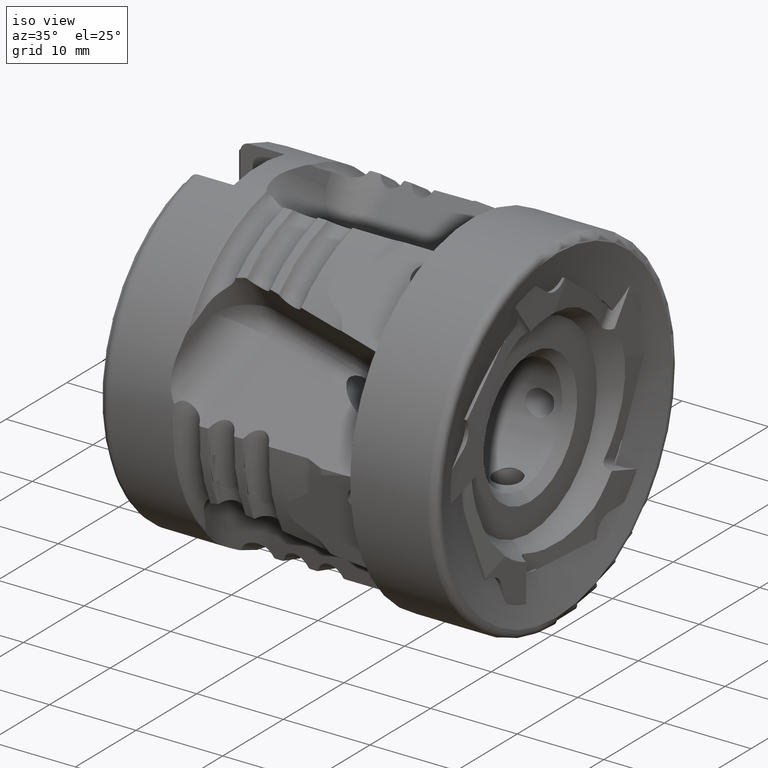
[diagram: clean part render]
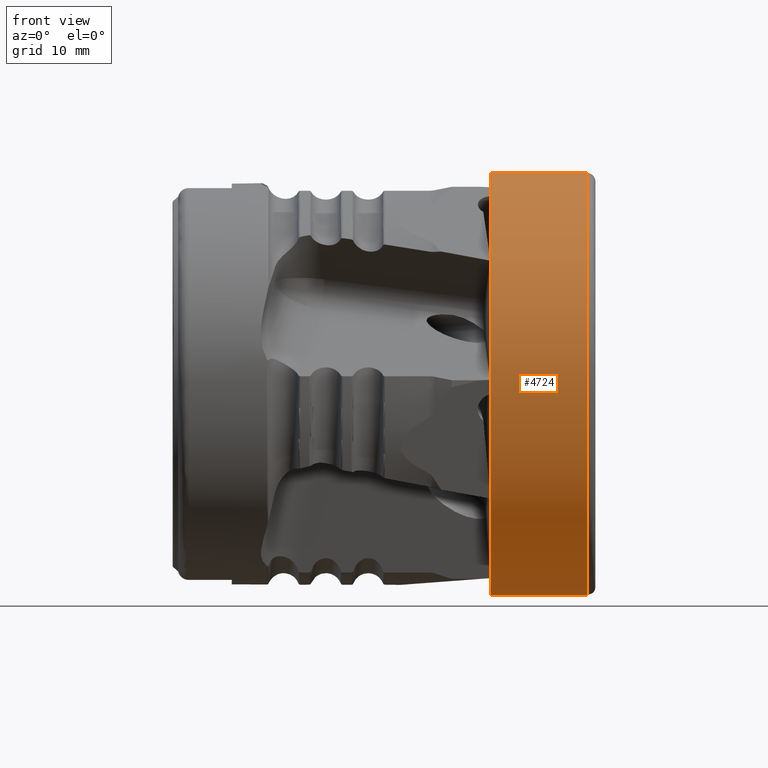
[diagram: tour spotlight — one face highlighted and labeled with its STEP entity id]
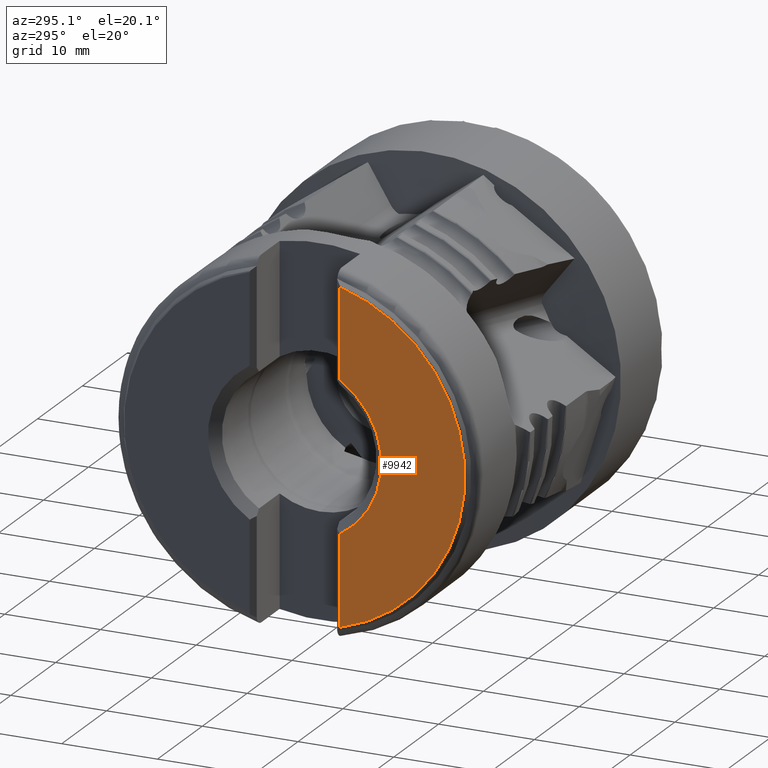
[diagram: tour spotlight — one face highlighted and labeled with its STEP entity id]
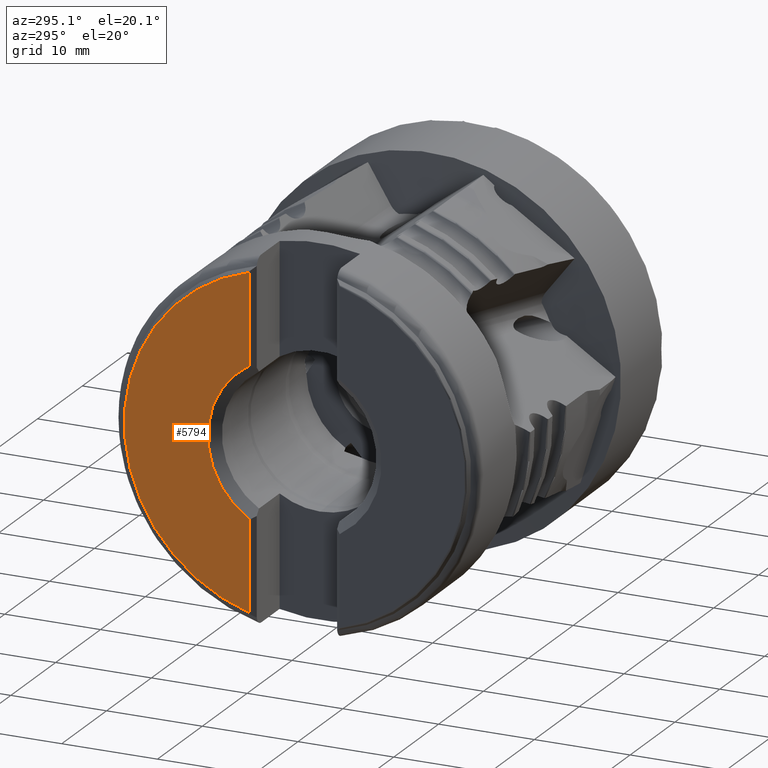
[diagram: tour spotlight — one face highlighted and labeled with its STEP entity id]
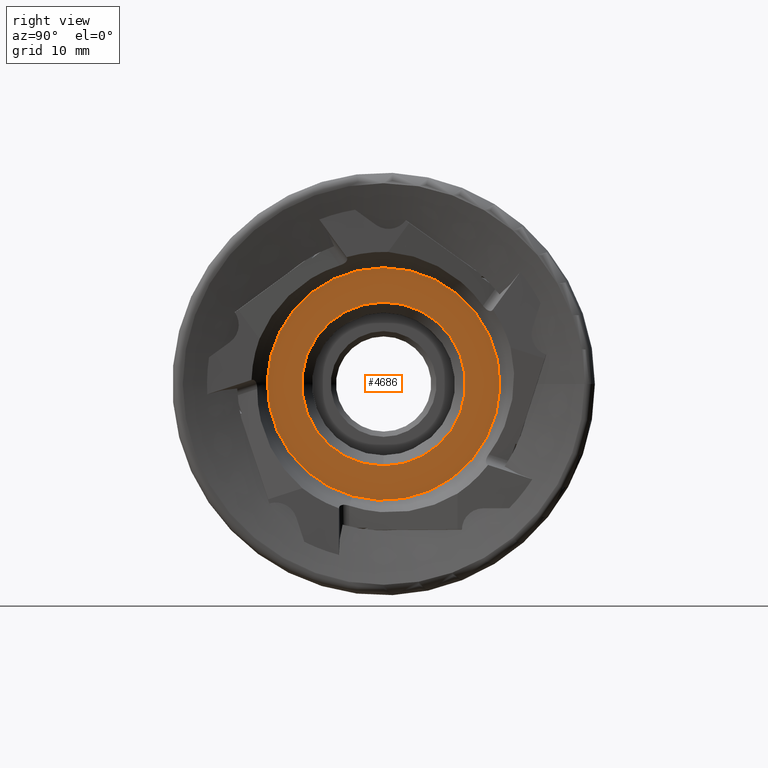
[diagram: tour spotlight — one face highlighted and labeled with its STEP entity id]
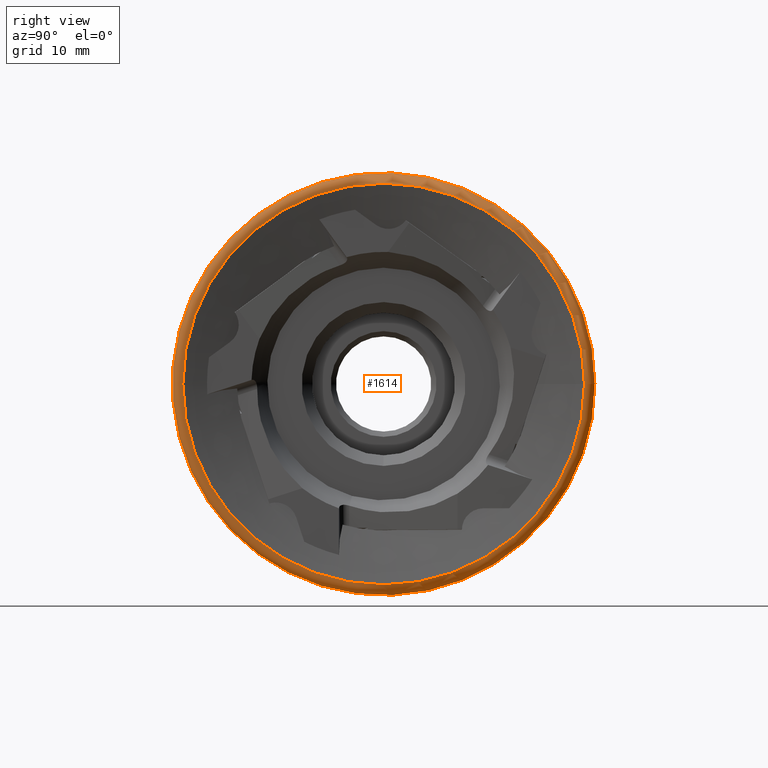
[diagram: tour spotlight — one face highlighted and labeled with its STEP entity id]
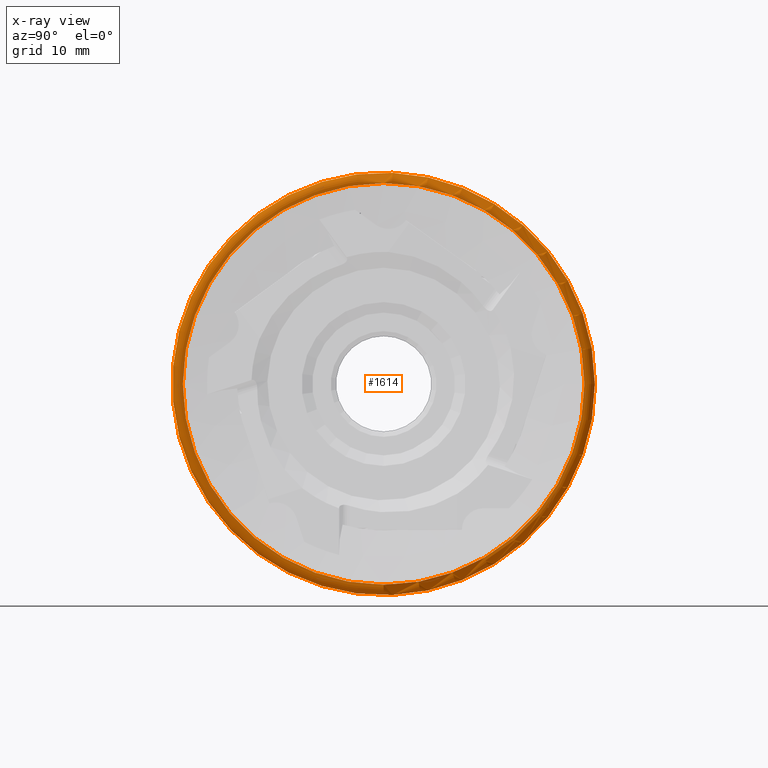
[diagram: x-ray of the same camera — body ghosted, this tour face saturated]
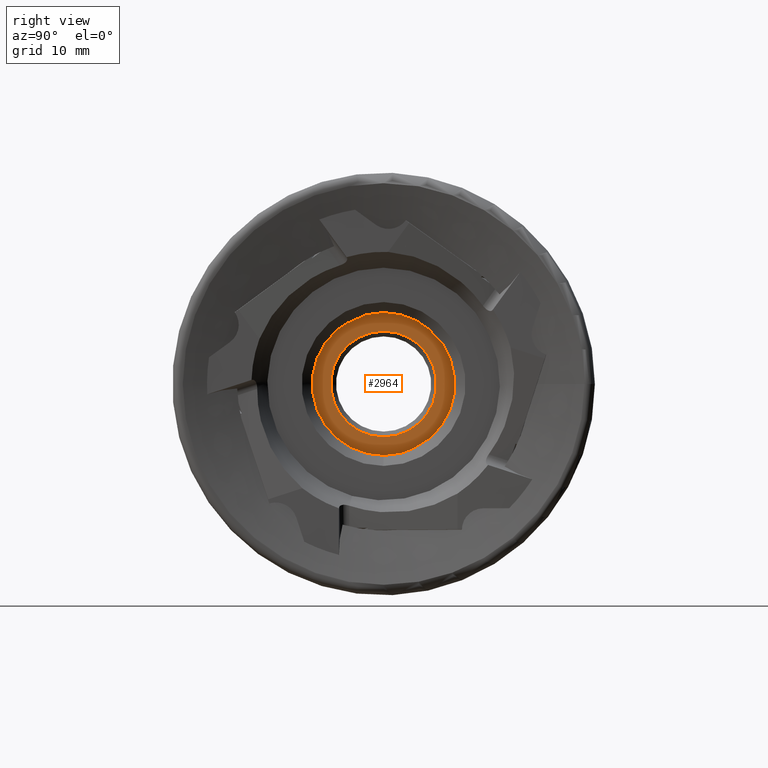
[diagram: tour spotlight — one face highlighted and labeled with its STEP entity id]
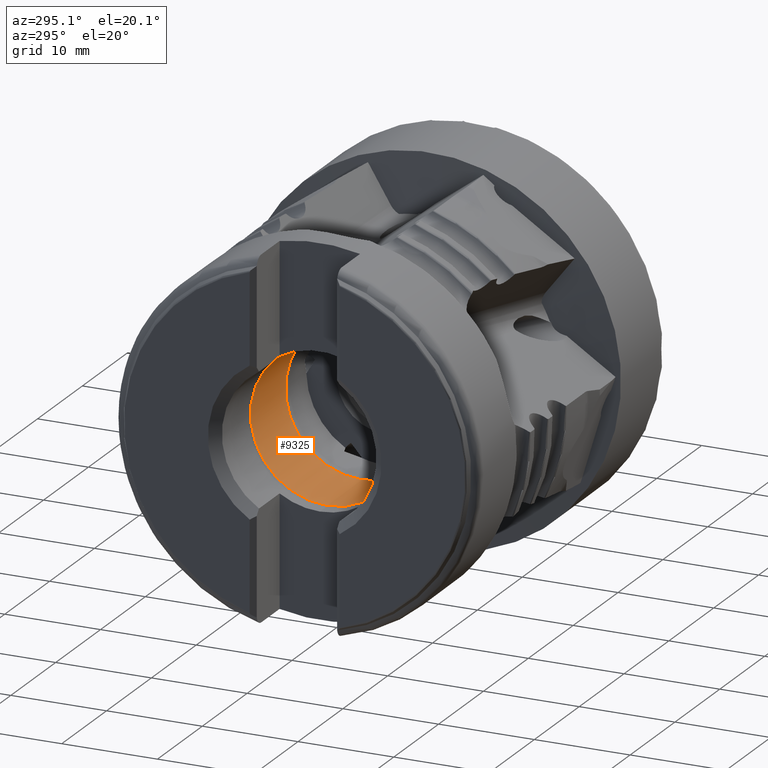
[diagram: tour spotlight — one face highlighted and labeled with its STEP entity id]
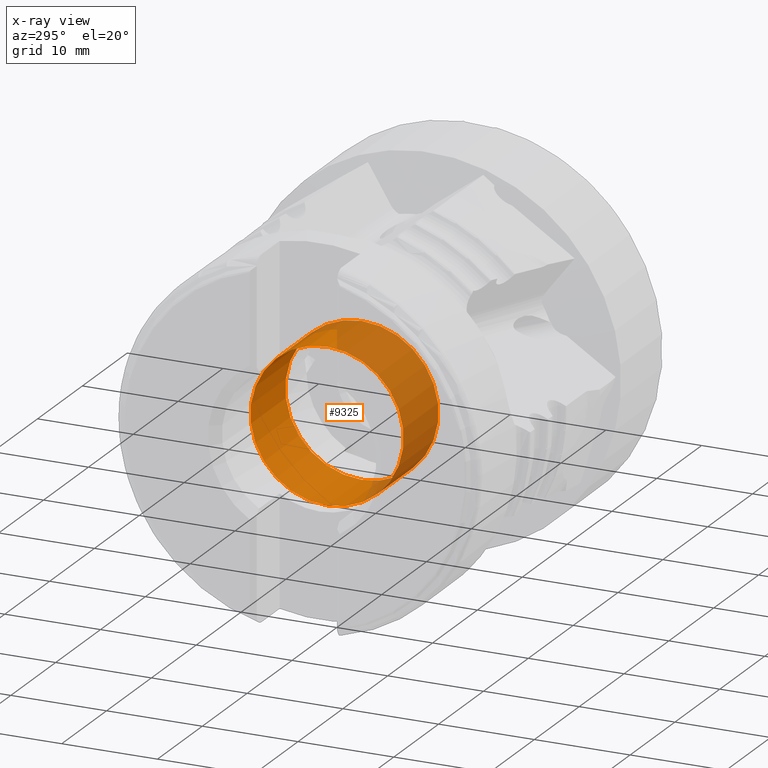
[diagram: x-ray of the same camera — body ghosted, this tour face saturated]
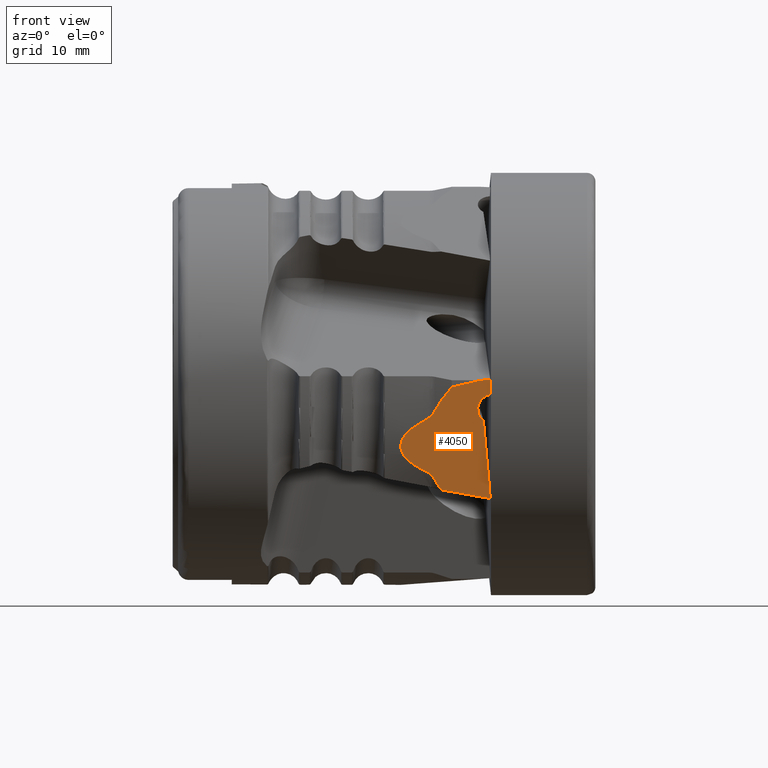
[diagram: tour spotlight — one face highlighted and labeled with its STEP entity id]
A machine part: a face-by-face anatomy tour. The part has 264 B-rep faces; the first image is the clean iso view, then the 8 largest visible faces are spotlighted one at a time (largest first), each with its STEP entity span.

Face 1 — front view, entity #4724. In plain terms, the highlighted cylindrical surface (bore or boss wall) has radius 19.9868 mm, axis along (1, 0, -0).
Definition (entity closure, byte-faithful):
#542 = EDGE_CURVE ( 'NONE', #4321, #4321, #8800, .T. ) ;
#618 = AXIS2_PLACEMENT_3D ( 'NONE', #6908, #4375, #10259 ) ;
#805 = ORIENTED_EDGE ( 'NONE', *, *, #542, .T. ) ;
#968 = AXIS2_PLACEMENT_3D ( 'NONE', #2980, #8769, #3812 ) ;
#1084 = CARTESIAN_POINT ( 'NONE',  ( -0.2073967284047837100, 19.98677821336436700, 0.0000000000000000000 ) ) ;
#1363 = EDGE_CURVE ( 'NONE', #1601, #1601, #9528, .T. ) ;
#1601 = VERTEX_POINT ( 'NONE', #1084 ) ;
#2368 = ORIENTED_EDGE ( 'NONE', *, *, #1363, .F. ) ;
#2763 = DIRECTION ( 'NONE',  ( -8.679355209019460200E-017, 1.000000000000000000, 0.0000000000000000000 ) ) ;
#2800 = DIRECTION ( 'NONE',  ( 1.000000000000000000, 1.236952380198094500E-016, -0.0000000000000000000 ) ) ;
#2980 = CARTESIAN_POINT ( 'NONE',  ( -0.2073967284047812400, -8.795422423755546100E-016, 0.0000000000000000000 ) ) ;
#3214 = CARTESIAN_POINT ( 'NONE',  ( -9.286532308095274900, -2.002588078919490900E-015, 0.0000000000000000000 ) ) ;
#3469 = AXIS2_PLACEMENT_3D ( 'NONE', #3214, #2800, #2763 ) ;
#3480 = EDGE_LOOP ( 'NONE', ( #805 ) ) ;
#3812 = DIRECTION ( 'NONE',  ( -1.234095818782454700E-016, 1.000000000000000000, 0.0000000000000000000 ) ) ;
#4321 = VERTEX_POINT ( 'NONE', #8502 ) ;
#4375 = DIRECTION ( 'NONE',  ( 1.000000000000000000, 1.236952380198094500E-016, -0.0000000000000000000 ) ) ;
#4724 = ADVANCED_FACE ( 'NONE', ( #5711, #10158 ), #6894, .T. ) ;
#5711 = FACE_OUTER_BOUND ( 'NONE', #3480, .T. ) ;
#6894 = CYLINDRICAL_SURFACE ( 'NONE', #618, 19.98677821336437100 ) ;
#6908 = CARTESIAN_POINT ( 'NONE',  ( 6.903161903081891800, 0.0000000000000000000, 0.0000000000000000000 ) ) ;
#7835 = EDGE_LOOP ( 'NONE', ( #2368 ) ) ;
#8502 = CARTESIAN_POINT ( 'NONE',  ( -9.286532308095276600, 19.98677821336436700, 0.0000000000000000000 ) ) ;
#8769 = DIRECTION ( 'NONE',  ( 1.000000000000000000, 1.236952380198094500E-016, -0.0000000000000000000 ) ) ;
#8800 = CIRCLE ( 'NONE', #3469, 19.98677821336437100 ) ;
#9528 = CIRCLE ( 'NONE', #968, 19.98677821336436700 ) ;
#10158 = FACE_OUTER_BOUND ( 'NONE', #7835, .T. ) ;
#10259 = DIRECTION ( 'NONE',  ( -1.301903281352918900E-016, 1.000000000000000000, 0.0000000000000000000 ) ) ;

Face 2 — auxiliary view, entity #9942. In plain terms, the highlighted planar face has unit normal (-1, 0, 0).
Definition (entity closure, byte-faithful):
#396 = CARTESIAN_POINT ( 'NONE',  ( -39.39999999999999900, 18.99999999999999600, 0.0000000000000000000 ) ) ;
#652 = VERTEX_POINT ( 'NONE', #4860 ) ;
#964 = AXIS2_PLACEMENT_3D ( 'NONE', #4315, #10141, #5144 ) ;
#1250 = DIRECTION ( 'NONE',  ( -1.000000000000000000, 0.0000000000000000000, 0.0000000000000000000 ) ) ;
#1431 = CARTESIAN_POINT ( 'NONE',  ( -39.39999999999999900, -4.700000000000002800, 17.15791654018633800 ) ) ;
#1583 = CARTESIAN_POINT ( 'NONE',  ( -39.39999999999999900, -4.700000000000002800, -17.28710791312416400 ) ) ;
#1599 = LINE ( 'NONE', #1583, #7955 ) ;
#1901 = EDGE_CURVE ( 'NONE', #3220, #6240, #9135, .T. ) ;
#2204 = LINE ( 'NONE', #6764, #10820 ) ;
#2554 = CARTESIAN_POINT ( 'NONE',  ( -39.39999999999999900, -4.700000000000002800, -7.763093777612116500 ) ) ;
#2639 = ORIENTED_EDGE ( 'NONE', *, *, #1901, .F. ) ;
#2787 = AXIS2_PLACEMENT_3D ( 'NONE', #396, #1250, #7054 ) ;
#3081 = CARTESIAN_POINT ( 'NONE',  ( -39.39999999999999900, 0.0000000000000000000, 0.0000000000000000000 ) ) ;
#3220 = VERTEX_POINT ( 'NONE', #1431 ) ;
#3908 = DIRECTION ( 'NONE',  ( 0.0000000000000000000, 0.0000000000000000000, 1.000000000000000000 ) ) ;
#4005 = AXIS2_PLACEMENT_3D ( 'NONE', #3081, #8865, #3908 ) ;
#4315 = CARTESIAN_POINT ( 'NONE',  ( -39.39999999999999900, -4.374278717023119000E-015, 0.0000000000000000000 ) ) ;
#4660 = FACE_OUTER_BOUND ( 'NONE', #9224, .T. ) ;
#4860 = CARTESIAN_POINT ( 'NONE',  ( -39.39999999999999900, -4.700000000000002800, 7.763093777612116500 ) ) ;
#5144 = DIRECTION ( 'NONE',  ( 0.0000000000000000000, 1.000000000000000000, 0.0000000000000000000 ) ) ;
#6177 = PLANE ( 'NONE',  #2787 ) ;
#6240 = VERTEX_POINT ( 'NONE', #7792 ) ;
#6592 = EDGE_CURVE ( 'NONE', #3220, #652, #2204, .T. ) ;
#6764 = CARTESIAN_POINT ( 'NONE',  ( -39.39999999999999900, -4.700000000000002800, 8.044602227580922400 ) ) ;
#7054 = DIRECTION ( 'NONE',  ( 0.0000000000000000000, 0.0000000000000000000, 1.000000000000000000 ) ) ;
#7622 = DIRECTION ( 'NONE',  ( 0.0000000000000000000, 0.0000000000000000000, -1.000000000000000000 ) ) ;
#7792 = CARTESIAN_POINT ( 'NONE',  ( -39.39999999999999900, -4.700000000000002000, -17.15791654018633800 ) ) ;
#7955 = VECTOR ( 'NONE', #10728, 1000.000000000000000 ) ;
#8267 = EDGE_CURVE ( 'NONE', #652, #10721, #9249, .T. ) ;
#8410 = EDGE_CURVE ( 'NONE', #10721, #6240, #1599, .T. ) ;
#8865 = DIRECTION ( 'NONE',  ( 1.000000000000000000, -0.0000000000000000000, -0.0000000000000000000 ) ) ;
#9135 = CIRCLE ( 'NONE', #964, 17.78999999999999900 ) ;
#9224 = EDGE_LOOP ( 'NONE', ( #10675, #9479, #2639, #9950 ) ) ;
#9249 = CIRCLE ( 'NONE', #4005, 9.074999999999999300 ) ;
#9479 = ORIENTED_EDGE ( 'NONE', *, *, #8410, .T. ) ;
#9942 = ADVANCED_FACE ( 'NONE', ( #4660 ), #6177, .T. ) ;
#9950 = ORIENTED_EDGE ( 'NONE', *, *, #6592, .T. ) ;
#10141 = DIRECTION ( 'NONE',  ( 1.000000000000000000, 1.110223024625157000E-016, -0.0000000000000000000 ) ) ;
#10675 = ORIENTED_EDGE ( 'NONE', *, *, #8267, .T. ) ;
#10721 = VERTEX_POINT ( 'NONE', #2554 ) ;
#10728 = DIRECTION ( 'NONE',  ( 0.0000000000000000000, 0.0000000000000000000, -1.000000000000000000 ) ) ;
#10820 = VECTOR ( 'NONE', #7622, 1000.000000000000000 ) ;

Face 3 — auxiliary view, entity #5794. In plain terms, the highlighted planar face has unit normal (-1, 0, 0).
Definition (entity closure, byte-faithful):
#123 = EDGE_CURVE ( 'NONE', #8005, #8470, #5832, .T. ) ;
#543 = CIRCLE ( 'NONE', #10367, 9.074999999999999300 ) ;
#900 = VECTOR ( 'NONE', #10221, 1000.000000000000000 ) ;
#991 = CARTESIAN_POINT ( 'NONE',  ( -39.39999999999999900, 4.699999999999995700, -7.763093777612120900 ) ) ;
#1206 = EDGE_CURVE ( 'NONE', #8206, #8470, #9041, .T. ) ;
#1446 = ORIENTED_EDGE ( 'NONE', *, *, #7724, .T. ) ;
#1579 = FACE_OUTER_BOUND ( 'NONE', #5257, .T. ) ;
#1689 = PLANE ( 'NONE',  #10610 ) ;
#1906 = VERTEX_POINT ( 'NONE', #991 ) ;
#2070 = ORIENTED_EDGE ( 'NONE', *, *, #3592, .T. ) ;
#2516 = DIRECTION ( 'NONE',  ( 0.0000000000000000000, 0.0000000000000000000, 1.000000000000000000 ) ) ;
#3116 = CARTESIAN_POINT ( 'NONE',  ( -39.39999999999999900, 0.0000000000000000000, 0.0000000000000000000 ) ) ;
#3229 = DIRECTION ( 'NONE',  ( 0.0000000000000000000, 1.000000000000000000, 0.0000000000000000000 ) ) ;
#3337 = CARTESIAN_POINT ( 'NONE',  ( -39.39999999999999900, 18.99999999999999600, 0.0000000000000000000 ) ) ;
#3478 = ORIENTED_EDGE ( 'NONE', *, *, #123, .T. ) ;
#3592 = EDGE_CURVE ( 'NONE', #1906, #8005, #543, .T. ) ;
#3938 = DIRECTION ( 'NONE',  ( 0.0000000000000000000, 8.881784197001252300E-016, 1.000000000000000000 ) ) ;
#4825 = DIRECTION ( 'NONE',  ( 1.000000000000000000, 1.110223024625157000E-016, -0.0000000000000000000 ) ) ;
#5031 = AXIS2_PLACEMENT_3D ( 'NONE', #10692, #4825, #3229 ) ;
#5225 = CARTESIAN_POINT ( 'NONE',  ( -39.39999999999999900, 4.699999999999995700, 17.28710791312416400 ) ) ;
#5257 = EDGE_LOOP ( 'NONE', ( #2070, #3478, #9382, #1446 ) ) ;
#5794 = ADVANCED_FACE ( 'NONE', ( #1579 ), #1689, .T. ) ;
#5832 = LINE ( 'NONE', #5225, #900 ) ;
#7495 = DIRECTION ( 'NONE',  ( -1.000000000000000000, 0.0000000000000000000, 0.0000000000000000000 ) ) ;
#7724 = EDGE_CURVE ( 'NONE', #8206, #1906, #10790, .T. ) ;
#8005 = VERTEX_POINT ( 'NONE', #9820 ) ;
#8206 = VERTEX_POINT ( 'NONE', #9556 ) ;
#8470 = VERTEX_POINT ( 'NONE', #9966 ) ;
#8542 = VECTOR ( 'NONE', #9531, 1000.000000000000000 ) ;
#8694 = CARTESIAN_POINT ( 'NONE',  ( -39.39999999999999900, 4.699999999999995700, -8.044602227580927700 ) ) ;
#8899 = DIRECTION ( 'NONE',  ( 1.000000000000000000, -0.0000000000000000000, -0.0000000000000000000 ) ) ;
#9041 = CIRCLE ( 'NONE', #5031, 17.78999999999999900 ) ;
#9382 = ORIENTED_EDGE ( 'NONE', *, *, #1206, .F. ) ;
#9531 = DIRECTION ( 'NONE',  ( 0.0000000000000000000, -0.0000000000000000000, 1.000000000000000000 ) ) ;
#9556 = CARTESIAN_POINT ( 'NONE',  ( -39.39999999999999900, 4.699999999999995700, -17.15791654018633800 ) ) ;
#9820 = CARTESIAN_POINT ( 'NONE',  ( -39.39999999999999900, 4.699999999999995700, 7.763093777612120900 ) ) ;
#9966 = CARTESIAN_POINT ( 'NONE',  ( -39.39999999999999900, 4.699999999999996600, 17.15791654018633800 ) ) ;
#10221 = DIRECTION ( 'NONE',  ( 0.0000000000000000000, -0.0000000000000000000, 1.000000000000000000 ) ) ;
#10367 = AXIS2_PLACEMENT_3D ( 'NONE', #3116, #8899, #3938 ) ;
#10610 = AXIS2_PLACEMENT_3D ( 'NONE', #3337, #7495, #2516 ) ;
#10692 = CARTESIAN_POINT ( 'NONE',  ( -39.39999999999999900, -4.374278717023119000E-015, 0.0000000000000000000 ) ) ;
#10790 = LINE ( 'NONE', #8694, #8542 ) ;

Face 4 — right view, entity #4686. In plain terms, the highlighted planar face has unit normal (1, 0, 0).
Definition (entity closure, byte-faithful):
#213 = CARTESIAN_POINT ( 'NONE',  ( -2.499999999999999100, 11.00000000000000000, 0.0000000000000000000 ) ) ;
#787 = EDGE_LOOP ( 'NONE', ( #3868 ) ) ;
#994 = CARTESIAN_POINT ( 'NONE',  ( -2.499999999999999600, 0.0000000000000000000, 0.0000000000000000000 ) ) ;
#1071 = DIRECTION ( 'NONE',  ( 1.000000000000000000, 0.0000000000000000000, 0.0000000000000000000 ) ) ;
#1087 = VERTEX_POINT ( 'NONE', #6924 ) ;
#1347 = VERTEX_POINT ( 'NONE', #10241 ) ;
#1571 = FACE_OUTER_BOUND ( 'NONE', #787, .T. ) ;
#1828 = DIRECTION ( 'NONE',  ( 0.0000000000000000000, 0.0000000000000000000, 1.000000000000000000 ) ) ;
#2095 = AXIS2_PLACEMENT_3D ( 'NONE', #4583, #10453, #5436 ) ;
#2954 = EDGE_LOOP ( 'NONE', ( #3485 ) ) ;
#3485 = ORIENTED_EDGE ( 'NONE', *, *, #7311, .T. ) ;
#3868 = ORIENTED_EDGE ( 'NONE', *, *, #5477, .F. ) ;
#4387 = CIRCLE ( 'NONE', #8540, 11.00000000000000000 ) ;
#4583 = CARTESIAN_POINT ( 'NONE',  ( -2.499999999999999100, 0.0000000000000000000, 0.0000000000000000000 ) ) ;
#4686 = ADVANCED_FACE ( 'NONE', ( #8180, #1571 ), #8493, .T. ) ;
#5436 = DIRECTION ( 'NONE',  ( 0.0000000000000000000, 0.0000000000000000000, -1.000000000000000000 ) ) ;
#5477 = EDGE_CURVE ( 'NONE', #1347, #1347, #4387, .T. ) ;
#6531 = AXIS2_PLACEMENT_3D ( 'NONE', #213, #1071, #6866 ) ;
#6617 = CIRCLE ( 'NONE', #2095, 7.750000000000007100 ) ;
#6801 = DIRECTION ( 'NONE',  ( -1.000000000000000000, -0.0000000000000000000, -0.0000000000000000000 ) ) ;
#6866 = DIRECTION ( 'NONE',  ( 0.0000000000000000000, 0.0000000000000000000, -1.000000000000000000 ) ) ;
#6924 = CARTESIAN_POINT ( 'NONE',  ( -2.499999999999999100, 0.0000000000000000000, -7.750000000000007100 ) ) ;
#7311 = EDGE_CURVE ( 'NONE', #1087, #1087, #6617, .T. ) ;
#8180 = FACE_BOUND ( 'NONE', #2954, .T. ) ;
#8493 = PLANE ( 'NONE',  #6531 ) ;
#8540 = AXIS2_PLACEMENT_3D ( 'NONE', #994, #6801, #1828 ) ;
#10241 = CARTESIAN_POINT ( 'NONE',  ( -2.499999999999999600, 0.0000000000000000000, 11.00000000000000000 ) ) ;
#10453 = DIRECTION ( 'NONE',  ( -1.000000000000000000, -0.0000000000000000000, -0.0000000000000000000 ) ) ;

Face 5 — right view, entity #1614. An x-ray twin of the same camera follows (body ghosted, this face saturated) — the face is partly hidden behind the body. In plain terms, the highlighted toroidal blend (fillet) surface has major radius 19.1868 mm and minor (blend) radius 0.8 mm.
Definition (entity closure, byte-faithful):
#23 = AXIS2_PLACEMENT_3D ( 'NONE', #9469, #7908, #2949 ) ;
#298 = FACE_OUTER_BOUND ( 'NONE', #1435, .T. ) ;
#967 = EDGE_CURVE ( 'NONE', #3804, #3804, #3996, .T. ) ;
#968 = AXIS2_PLACEMENT_3D ( 'NONE', #2980, #8769, #3812 ) ;
#1084 = CARTESIAN_POINT ( 'NONE',  ( -0.2073967284047837100, 19.98677821336436700, 0.0000000000000000000 ) ) ;
#1363 = EDGE_CURVE ( 'NONE', #1601, #1601, #9528, .T. ) ;
#1435 = EDGE_LOOP ( 'NONE', ( #1549 ) ) ;
#1549 = ORIENTED_EDGE ( 'NONE', *, *, #967, .F. ) ;
#1601 = VERTEX_POINT ( 'NONE', #1084 ) ;
#1614 = ADVANCED_FACE ( 'NONE', ( #2510, #298 ), #1886, .T. ) ;
#1886 = TOROIDAL_SURFACE ( 'NONE', #23, 19.18677821336437000, 0.7999999999999997100 ) ;
#2510 = FACE_OUTER_BOUND ( 'NONE', #6481, .T. ) ;
#2747 = CARTESIAN_POINT ( 'NONE',  ( 0.5689862865202015600, 18.99382896061642600, 0.0000000000000000000 ) ) ;
#2949 = DIRECTION ( 'NONE',  ( -1.236952380198094500E-016, 1.000000000000000000, 0.0000000000000000000 ) ) ;
#2980 = CARTESIAN_POINT ( 'NONE',  ( -0.2073967284047812400, -8.795422423755546100E-016, 0.0000000000000000000 ) ) ;
#3053 = AXIS2_PLACEMENT_3D ( 'NONE', #3839, #4638, #9638 ) ;
#3804 = VERTEX_POINT ( 'NONE', #2747 ) ;
#3812 = DIRECTION ( 'NONE',  ( -1.234095818782454700E-016, 1.000000000000000000, 0.0000000000000000000 ) ) ;
#3839 = CARTESIAN_POINT ( 'NONE',  ( 0.5689862865202038900, -7.835073605498713200E-016, 0.0000000000000000000 ) ) ;
#3996 = CIRCLE ( 'NONE', #3053, 18.99382896061642600 ) ;
#4638 = DIRECTION ( 'NONE',  ( 1.000000000000000000, 1.236952380198094500E-016, -0.0000000000000000000 ) ) ;
#4899 = ORIENTED_EDGE ( 'NONE', *, *, #1363, .T. ) ;
#6481 = EDGE_LOOP ( 'NONE', ( #4899 ) ) ;
#7908 = DIRECTION ( 'NONE',  ( 1.000000000000000000, 1.236952380198094500E-016, -0.0000000000000000000 ) ) ;
#8769 = DIRECTION ( 'NONE',  ( 1.000000000000000000, 1.236952380198094500E-016, -0.0000000000000000000 ) ) ;
#9469 = CARTESIAN_POINT ( 'NONE',  ( -0.2073967284047815400, 0.0000000000000000000, 0.0000000000000000000 ) ) ;
#9528 = CIRCLE ( 'NONE', #968, 19.98677821336436700 ) ;
#9638 = DIRECTION ( 'NONE',  ( -1.255799862373141400E-016, 1.000000000000000000, 0.0000000000000000000 ) ) ;

Face 6 — right view, entity #2964. In plain terms, the highlighted planar face has unit normal (-1, 0, 0).
Definition (entity closure, byte-faithful):
#1242 = EDGE_LOOP ( 'NONE', ( #4165 ) ) ;
#1502 = DIRECTION ( 'NONE',  ( -1.000000000000000000, 0.0000000000000000000, 0.0000000000000000000 ) ) ;
#2558 = AXIS2_PLACEMENT_3D ( 'NONE', #9839, #4842, #10715 ) ;
#2790 = CARTESIAN_POINT ( 'NONE',  ( -11.50000000000000000, 0.0000000000000000000, 5.000000000000011500 ) ) ;
#2964 = ADVANCED_FACE ( 'NONE', ( #10063, #5363 ), #10202, .F. ) ;
#3538 = CIRCLE ( 'NONE', #6323, 5.000000000000011500 ) ;
#4165 = ORIENTED_EDGE ( 'NONE', *, *, #10174, .T. ) ;
#4382 = DIRECTION ( 'NONE',  ( -1.000000000000000000, 0.0000000000000000000, 0.0000000000000000000 ) ) ;
#4508 = ORIENTED_EDGE ( 'NONE', *, *, #9732, .T. ) ;
#4842 = DIRECTION ( 'NONE',  ( 1.000000000000000000, -0.0000000000000000000, -0.0000000000000000000 ) ) ;
#5226 = VERTEX_POINT ( 'NONE', #2790 ) ;
#5363 = FACE_OUTER_BOUND ( 'NONE', #1242, .T. ) ;
#5598 = EDGE_LOOP ( 'NONE', ( #4508 ) ) ;
#6323 = AXIS2_PLACEMENT_3D ( 'NONE', #6482, #1502, #7318 ) ;
#6482 = CARTESIAN_POINT ( 'NONE',  ( -11.50000000000000000, 0.0000000000000000000, 0.0000000000000000000 ) ) ;
#7282 = CIRCLE ( 'NONE', #2558, 6.749999999999998200 ) ;
#7318 = DIRECTION ( 'NONE',  ( 0.0000000000000000000, 0.0000000000000000000, 1.000000000000000000 ) ) ;
#8118 = AXIS2_PLACEMENT_3D ( 'NONE', #8529, #4382, #10233 ) ;
#8529 = CARTESIAN_POINT ( 'NONE',  ( -11.50000000000000000, 6.749999999999998200, 0.0000000000000000000 ) ) ;
#9388 = VERTEX_POINT ( 'NONE', #9413 ) ;
#9413 = CARTESIAN_POINT ( 'NONE',  ( -11.50000000000000000, 0.0000000000000000000, -6.749999999999998200 ) ) ;
#9732 = EDGE_CURVE ( 'NONE', #5226, #5226, #3538, .T. ) ;
#9839 = CARTESIAN_POINT ( 'NONE',  ( -11.50000000000000000, 0.0000000000000000000, 0.0000000000000000000 ) ) ;
#10063 = FACE_BOUND ( 'NONE', #5598, .T. ) ;
#10174 = EDGE_CURVE ( 'NONE', #9388, #9388, #7282, .T. ) ;
#10202 = PLANE ( 'NONE',  #8118 ) ;
#10233 = DIRECTION ( 'NONE',  ( 0.0000000000000000000, 0.0000000000000000000, 1.000000000000000000 ) ) ;
#10715 = DIRECTION ( 'NONE',  ( 0.0000000000000000000, 0.0000000000000000000, -1.000000000000000000 ) ) ;

Face 7 — auxiliary view, entity #9325. An x-ray twin of the same camera follows (body ghosted, this face saturated) — the face is partly hidden behind the body. In plain terms, the highlighted cylindrical surface (bore or boss wall) has radius 8 mm, axis along (1, -0, -0).
Definition (entity closure, byte-faithful):
#268 = CARTESIAN_POINT ( 'NONE',  ( -32.18000000000000000, 0.0000000000000000000, -7.999999999999996400 ) ) ;
#557 = AXIS2_PLACEMENT_3D ( 'NONE', #7738, #2773, #8559 ) ;
#675 = EDGE_LOOP ( 'NONE', ( #2617 ) ) ;
#1662 = DIRECTION ( 'NONE',  ( 1.000000000000000000, -0.0000000000000000000, -0.0000000000000000000 ) ) ;
#1983 = CARTESIAN_POINT ( 'NONE',  ( -24.39999999999999900, 0.0000000000000000000, 0.0000000000000000000 ) ) ;
#2488 = DIRECTION ( 'NONE',  ( 0.0000000000000000000, 0.0000000000000000000, -1.000000000000000000 ) ) ;
#2617 = ORIENTED_EDGE ( 'NONE', *, *, #5973, .T. ) ;
#2773 = DIRECTION ( 'NONE',  ( 1.000000000000000000, -0.0000000000000000000, -0.0000000000000000000 ) ) ;
#2818 = DIRECTION ( 'NONE',  ( 0.0000000000000000000, 0.0000000000000000000, -1.000000000000000000 ) ) ;
#3411 = CYLINDRICAL_SURFACE ( 'NONE', #4831, 7.999999999999996400 ) ;
#4783 = AXIS2_PLACEMENT_3D ( 'NONE', #1983, #7789, #2818 ) ;
#4831 = AXIS2_PLACEMENT_3D ( 'NONE', #9977, #1662, #2488 ) ;
#5122 = ORIENTED_EDGE ( 'NONE', *, *, #5558, .F. ) ;
#5484 = VERTEX_POINT ( 'NONE', #6073 ) ;
#5558 = EDGE_CURVE ( 'NONE', #7702, #7702, #10804, .T. ) ;
#5973 = EDGE_CURVE ( 'NONE', #5484, #5484, #7167, .T. ) ;
#6073 = CARTESIAN_POINT ( 'NONE',  ( -24.39999999999999900, 0.0000000000000000000, -7.999999999999998200 ) ) ;
#6125 = FACE_OUTER_BOUND ( 'NONE', #8145, .T. ) ;
#7167 = CIRCLE ( 'NONE', #4783, 7.999999999999998200 ) ;
#7702 = VERTEX_POINT ( 'NONE', #268 ) ;
#7738 = CARTESIAN_POINT ( 'NONE',  ( -32.18000000000000000, 0.0000000000000000000, 0.0000000000000000000 ) ) ;
#7789 = DIRECTION ( 'NONE',  ( 1.000000000000000000, -0.0000000000000000000, -0.0000000000000000000 ) ) ;
#8145 = EDGE_LOOP ( 'NONE', ( #5122 ) ) ;
#8559 = DIRECTION ( 'NONE',  ( 0.0000000000000000000, 0.0000000000000000000, -1.000000000000000000 ) ) ;
#9325 = ADVANCED_FACE ( 'NONE', ( #6125, #10031 ), #3411, .F. ) ;
#9977 = CARTESIAN_POINT ( 'NONE',  ( 0.0000000000000000000, 0.0000000000000000000, 0.0000000000000000000 ) ) ;
#10031 = FACE_OUTER_BOUND ( 'NONE', #675, .T. ) ;
#10804 = CIRCLE ( 'NONE', #557, 7.999999999999996400 ) ;

Face 8 — front view, entity #4050. In plain terms, the highlighted planar face has unit normal (-0.075, 0.9484, 0.3081).
Definition (entity closure, byte-faithful):
#177 = B_SPLINE_CURVE_WITH_KNOTS ( 'NONE', 3,
 ( #6679, #2535, #3390, #9169 ),
 .UNSPECIFIED., .F., .F.,
 ( 4, 4 ),
 ( 4.274086686355537300E-007, 0.001185979376558122300 ),
 .UNSPECIFIED. ) ;
#182 = ORIENTED_EDGE ( 'NONE', *, *, #7796, .T. ) ;
#254 = AXIS2_PLACEMENT_3D ( 'NONE', #2270, #8086, #5613 ) ;
#380 = EDGE_CURVE ( 'NONE', #809, #4068, #790, .T. ) ;
#447 = VERTEX_POINT ( 'NONE', #10065 ) ;
#587 = EDGE_CURVE ( 'NONE', #6037, #3058, #3594, .T. ) ;
#655 = EDGE_CURVE ( 'NONE', #5467, #9776, #3852, .T. ) ;
#743 = CARTESIAN_POINT ( 'NONE',  ( -12.13558143358529200, -19.50106991009958400, -0.08436582974813403000 ) ) ;
#775 = CARTESIAN_POINT ( 'NONE',  ( -12.99999999999999100, -19.49760914604278700, -0.3053483062785914400 ) ) ;
#788 = CARTESIAN_POINT ( 'NONE',  ( -14.67734318512124300, -16.82715116507483400, -8.932305983171211500 ) ) ;
#790 = B_SPLINE_CURVE_WITH_KNOTS ( 'NONE', 3,
 ( #8990, #4916, #6830, #9167 ),
 .UNSPECIFIED., .F., .F.,
 ( 4, 4 ),
 ( 9.295187943750916300E-006, 0.0008144583708817124900 ),
 .UNSPECIFIED. ) ;
#809 = VERTEX_POINT ( 'NONE', #8762 ) ;
#865 = EDGE_CURVE ( 'NONE', #5702, #6037, #6975, .T. ) ;
#938 = CARTESIAN_POINT ( 'NONE',  ( -14.61169230873978000, -16.78378593433801700, -9.049796191613916500 ) ) ;
#1018 = CARTESIAN_POINT ( 'NONE',  ( -9.363473333581923800, -19.28967224337261400, -0.06046835249628557100 ) ) ;
#1036 = EDGE_LOOP ( 'NONE', ( #8154, #6532, #1635, #3271, #8597, #7084, #8958, #182, #5709, #10387, #10136, #9336 ) ) ;
#1588 = CARTESIAN_POINT ( 'NONE',  ( -14.74739775451192400, -18.83099420975120400, -2.782156993520339000 ) ) ;
#1635 = ORIENTED_EDGE ( 'NONE', *, *, #10336, .T. ) ;
#1647 = VERTEX_POINT ( 'NONE', #9538 ) ;
#1866 = EDGE_CURVE ( 'NONE', #3058, #447, #177, .T. ) ;
#1955 = CARTESIAN_POINT ( 'NONE',  ( -10.00920896266892700, -18.23312345142045400, -3.469312326743661400 ) ) ;
#1992 = DIRECTION ( 'NONE',  ( -0.9968893454005204300, -0.06376179575208355800, -0.04632565627588367700 ) ) ;
#2124 = CARTESIAN_POINT ( 'NONE',  ( -18.72145722877902300, -18.42144084298793100, -5.009605462801066400 ) ) ;
#2267 = CARTESIAN_POINT ( 'NONE',  ( -15.12933039895902200, -17.02345160473252900, -8.438133410970074500 ) ) ;
#2270 = CARTESIAN_POINT ( 'NONE',  ( 1.320412868775048900, -16.70143576167563300, -5.426625434337254600 ) ) ;
#2315 = EDGE_CURVE ( 'NONE', #10268, #1647, #8325, .T. ) ;
#2406 = CARTESIAN_POINT ( 'NONE',  ( -14.91400782745250300, -18.77241698174162500, -3.002978922281976700 ) ) ;
#2411 = CARTESIAN_POINT ( 'NONE',  ( -14.91390982448910000, -16.95228356949360600, -8.604749714424029200 ) ) ;
#2535 = CARTESIAN_POINT ( 'NONE',  ( -14.42676399036649700, -16.66163281715702400, -9.380747853938313300 ) ) ;
#2638 = AXIS2_PLACEMENT_3D ( 'NONE', #8459, #3506, #9284 ) ;
#2826 = CARTESIAN_POINT ( 'NONE',  ( -10.00920896266892700, -18.23312345142045400, -3.469312326743660500 ) ) ;
#2925 = B_SPLINE_CURVE_WITH_KNOTS ( 'NONE', 3,
 ( #10730, #9854, #1588, #7388, #2406, #8219, #3272, #9035 ),
 .UNSPECIFIED., .F., .F.,
 ( 4, 2, 2, 4 ),
 ( 4.298358274765125700E-007, 0.0004233228740489895500, 0.0006347693931597455200, 0.0008462159122705015300 ),
 .UNSPECIFIED. ) ;
#3058 = VERTEX_POINT ( 'NONE', #4479 ) ;
#3271 = ORIENTED_EDGE ( 'NONE', *, *, #4658, .T. ) ;
#3272 = CARTESIAN_POINT ( 'NONE',  ( -15.06598134314831900, -18.73755017215237500, -3.147266302327183400 ) ) ;
#3276 = CARTESIAN_POINT ( 'NONE',  ( -14.86983696792575700, -16.93185317002359000, -8.656904159352764700 ) ) ;
#3390 = CARTESIAN_POINT ( 'NONE',  ( -14.22145968918856000, -16.54243226980849400, -9.697654532649920600 ) ) ;
#3497 = CARTESIAN_POINT ( 'NONE',  ( -9.378999890875750400, -19.14120726803292200, -0.5211745030873750100 ) ) ;
#3506 = DIRECTION ( 'NONE',  ( -0.07497872682632791800, 0.9483794191917105400, 0.3081471527973226300 ) ) ;
#3594 = B_SPLINE_CURVE_WITH_KNOTS ( 'NONE', 3,
 ( #8359, #10735, #7148, #2411, #3276, #9904, #788, #938 ),
 .UNSPECIFIED., .F., .F.,
 ( 4, 2, 2, 4 ),
 ( 2.198514601150162200E-007, 0.0002113235443421359200, 0.0004224272372241568400, 0.0008446346229881987100 ),
 .UNSPECIFIED. ) ;
#3806 = CARTESIAN_POINT ( 'NONE',  ( -13.61841661030750600, -19.32101646091308600, -0.9993185614137203300 ) ) ;
#3852 =( BOUNDED_CURVE ( )  B_SPLINE_CURVE ( 3, ( #8287, #5828, #743, #6565 ),
 .UNSPECIFIED., .F., .F. ) 
 B_SPLINE_CURVE_WITH_KNOTS ( ( 4, 4 ),
 ( 2.809093080546160200, 2.843092915731404000 ),
 .UNSPECIFIED. ) 
 CURVE ( )  GEOMETRIC_REPRESENTATION_ITEM ( )  RATIONAL_B_SPLINE_CURVE ( ( 1.000000000000000000, 0.9999036699205750000, 0.9999036699205750000, 1.000000000000000000 ) ) 
 REPRESENTATION_ITEM ( '' )  );
#4050 = ADVANCED_FACE ( 'NONE', ( #10169 ), #10625, .F. ) ;
#4068 = VERTEX_POINT ( 'NONE', #7359 ) ;
#4189 = LINE ( 'NONE', #7323, #8611 ) ;
#4479 = CARTESIAN_POINT ( 'NONE',  ( -14.61169230873978000, -16.78378593433801700, -9.049796191613916500 ) ) ;
#4658 = EDGE_CURVE ( 'NONE', #9546, #10268, #10426, .T. ) ;
#4755 = CARTESIAN_POINT ( 'NONE',  ( -15.12933039895904500, -18.73207202699260400, -3.179540466099012500 ) ) ;
#4796 = DIRECTION ( 'NONE',  ( 0.9755127854024281400, 0.1338343923069048000, -0.1745369902119254500 ) ) ;
#4878 = CARTESIAN_POINT ( 'NONE',  ( -10.26411321623772300, -19.49672051478919200, 0.3576159507031421200 ) ) ;
#4916 = CARTESIAN_POINT ( 'NONE',  ( -9.386596877680228000, -15.87499094226979500, -10.57540322548545900 ) ) ;
#5136 = CARTESIAN_POINT ( 'NONE',  ( -9.392650044917831000, -18.99260582796224700, -0.9818440802932517600 ) ) ;
#5465 = CARTESIAN_POINT ( 'NONE',  ( -14.61169230875600500, -18.89770478850544300, -2.543822935222643800 ) ) ;
#5467 = VERTEX_POINT ( 'NONE', #4878 ) ;
#5613 = DIRECTION ( 'NONE',  ( 0.9971851335251157300, 0.07130900673169314500, 0.02316970080593290500 ) ) ;
#5702 = VERTEX_POINT ( 'NONE', #9819 ) ;
#5709 = ORIENTED_EDGE ( 'NONE', *, *, #5743, .T. ) ;
#5743 = EDGE_CURVE ( 'NONE', #7477, #5702, #2925, .T. ) ;
#5759 = VECTOR ( 'NONE', #8623, 1000.000000000000200 ) ;
#5828 = CARTESIAN_POINT ( 'NONE',  ( -11.22353131447068000, -19.50077367114499100, 0.1366435457631448900 ) ) ;
#5883 = LINE ( 'NONE', #7801, #7836 ) ;
#6037 = VERTEX_POINT ( 'NONE', #8681 ) ;
#6335 = B_SPLINE_CURVE_WITH_KNOTS ( 'NONE', 3,
 ( #9598, #3806, #10478, #5465 ),
 .UNSPECIFIED., .F., .F.,
 ( 4, 4 ),
 ( 3.043005191174918000E-007, 0.002823105391678297200 ),
 .UNSPECIFIED. ) ;
#6532 = ORIENTED_EDGE ( 'NONE', *, *, #380, .T. ) ;
#6565 = CARTESIAN_POINT ( 'NONE',  ( -12.99999999999999100, -19.49760914604278700, -0.3053483062785914400 ) ) ;
#6679 = CARTESIAN_POINT ( 'NONE',  ( -14.61169230873978000, -16.78378593433801700, -9.049796191613916500 ) ) ;
#6823 = CARTESIAN_POINT ( 'NONE',  ( -9.346189801495956600, -19.43800943962637700, 0.4002720436738497800 ) ) ;
#6830 = CARTESIAN_POINT ( 'NONE',  ( -9.394289363822068100, -15.95848739979103700, -10.32029929751497800 ) ) ;
#6975 =( BOUNDED_CURVE ( )  B_SPLINE_CURVE ( 3, ( #4755, #2124, #7973, #2267 ),
 .UNSPECIFIED., .F., .F. ) 
 B_SPLINE_CURVE_WITH_KNOTS ( ( 4, 4 ),
 ( 2.995568687189170900, 3.287616619990413500 ),
 .UNSPECIFIED. ) 
 CURVE ( )  GEOMETRIC_REPRESENTATION_ITEM ( )  RATIONAL_B_SPLINE_CURVE ( ( 1.000000000000000000, 0.9929049545020662800, 0.9929049545020662800, 1.000000000000000000 ) ) 
 REPRESENTATION_ITEM ( '' )  );
#7084 = ORIENTED_EDGE ( 'NONE', *, *, #8130, .T. ) ;
#7148 = CARTESIAN_POINT ( 'NONE',  ( -15.01215711873879900, -16.99076234864272900, -8.510229856235282500 ) ) ;
#7323 = CARTESIAN_POINT ( 'NONE',  ( -0.2360214880032236500, -14.53718326533479100, -12.46622314676750200 ) ) ;
#7359 = CARTESIAN_POINT ( 'NONE',  ( -9.401397751548811900, -16.04194137772639900, -10.06518398475483900 ) ) ;
#7388 = CARTESIAN_POINT ( 'NONE',  ( -14.87013621633403600, -18.78645464294441000, -2.949100551597461100 ) ) ;
#7449 = CARTESIAN_POINT ( 'NONE',  ( -14.61169230875600500, -18.89770478850544300, -2.543822935222643800 ) ) ;
#7477 = VERTEX_POINT ( 'NONE', #7449 ) ;
#7796 = EDGE_CURVE ( 'NONE', #9776, #7477, #6335, .T. ) ;
#7801 = CARTESIAN_POINT ( 'NONE',  ( 1.159006749068290300, -18.76608913083477900, 0.8884507234414749100 ) ) ;
#7836 = VECTOR ( 'NONE', #1992, 1000.000000000000100 ) ;
#7973 = CARTESIAN_POINT ( 'NONE',  ( -18.72145722877903000, -17.84783091368812800, -6.774995298967265700 ) ) ;
#8086 = DIRECTION ( 'NONE',  ( -0.07497872682632791800, 0.9483794191917106500, 0.3081471527973226900 ) ) ;
#8130 = EDGE_CURVE ( 'NONE', #1647, #5467, #5883, .T. ) ;
#8154 = ORIENTED_EDGE ( 'NONE', *, *, #10584, .T. ) ;
#8219 = CARTESIAN_POINT ( 'NONE',  ( -15.01157121694533500, -18.74813795312242700, -3.101441327382971700 ) ) ;
#8287 = CARTESIAN_POINT ( 'NONE',  ( -10.26411321623772300, -19.49672051478919200, 0.3576159507031421200 ) ) ;
#8325 = B_SPLINE_CURVE_WITH_KNOTS ( 'NONE', 3,
 ( #5136, #3497, #1018, #6823 ),
 .UNSPECIFIED., .F., .F.,
 ( 4, 4 ),
 ( 0.01036499428891372900, 0.01181727382425802300 ),
 .UNSPECIFIED. ) ;
#8359 = CARTESIAN_POINT ( 'NONE',  ( -15.12933039895902200, -17.02345160473252900, -8.438133410970074500 ) ) ;
#8459 = CARTESIAN_POINT ( 'NONE',  ( -9.040175882138253600, -18.51692817383843300, -2.360064938479668600 ) ) ;
#8597 = ORIENTED_EDGE ( 'NONE', *, *, #2315, .T. ) ;
#8611 = VECTOR ( 'NONE', #4796, 1000.000000000000000 ) ;
#8623 = DIRECTION ( 'NONE',  ( -0.08711846429042964500, -0.3140653113146028600, 0.9453958712669199300 ) ) ;
#8681 = CARTESIAN_POINT ( 'NONE',  ( -15.12933039895902200, -17.02345160473252900, -8.438133410970074500 ) ) ;
#8762 = CARTESIAN_POINT ( 'NONE',  ( -9.378339170361089200, -15.79145337804303400, -10.83049613660664300 ) ) ;
#8958 = ORIENTED_EDGE ( 'NONE', *, *, #655, .T. ) ;
#8990 = CARTESIAN_POINT ( 'NONE',  ( -9.378339170361089200, -15.79145337804303400, -10.83049613660664300 ) ) ;
#9035 = CARTESIAN_POINT ( 'NONE',  ( -15.12933039895904500, -18.73207202699260400, -3.179540466099012500 ) ) ;
#9167 = CARTESIAN_POINT ( 'NONE',  ( -9.401397751548811900, -16.04194137772639900, -10.06518398475483900 ) ) ;
#9169 = CARTESIAN_POINT ( 'NONE',  ( -14.00019748757503600, -16.42554409265910600, -10.00356157260736500 ) ) ;
#9284 = DIRECTION ( 'NONE',  ( 0.0000000000000000000, -0.3090169943749574400, 0.9510565162951502000 ) ) ;
#9336 = ORIENTED_EDGE ( 'NONE', *, *, #1866, .T. ) ;
#9538 = CARTESIAN_POINT ( 'NONE',  ( -9.346189801495956600, -19.43800943962637700, 0.4002720436738497800 ) ) ;
#9546 = VERTEX_POINT ( 'NONE', #1955 ) ;
#9598 = CARTESIAN_POINT ( 'NONE',  ( -12.99999999999999100, -19.49760914604278700, -0.3053483062785914400 ) ) ;
#9776 = VERTEX_POINT ( 'NONE', #775 ) ;
#9819 = CARTESIAN_POINT ( 'NONE',  ( -15.12933039895904500, -18.73207202699260400, -3.179540466099012500 ) ) ;
#9854 = CARTESIAN_POINT ( 'NONE',  ( -14.67728749272801100, -18.86375780739947300, -2.664261697248653700 ) ) ;
#9904 = CARTESIAN_POINT ( 'NONE',  ( -14.74747076458001000, -16.86993072915659300, -8.817707547997194700 ) ) ;
#10065 = CARTESIAN_POINT ( 'NONE',  ( -14.00019748757503600, -16.42554409265910600, -10.00356157260736500 ) ) ;
#10136 = ORIENTED_EDGE ( 'NONE', *, *, #587, .T. ) ;
#10169 = FACE_OUTER_BOUND ( 'NONE', #1036, .T. ) ;
#10268 = VERTEX_POINT ( 'NONE', #10777 ) ;
#10336 = EDGE_CURVE ( 'NONE', #4068, #9546, #10468, .T. ) ;
#10387 = ORIENTED_EDGE ( 'NONE', *, *, #865, .T. ) ;
#10426 = CIRCLE ( 'NONE', #2638, 1.499999999999999300 ) ;
#10468 = LINE ( 'NONE', #2826, #5759 ) ;
#10478 = CARTESIAN_POINT ( 'NONE',  ( -14.17137769326410400, -19.12557749237792100, -1.735364996996331200 ) ) ;
#10584 = EDGE_CURVE ( 'NONE', #447, #809, #4189, .T. ) ;
#10625 = PLANE ( 'NONE',  #254 ) ;
#10730 = CARTESIAN_POINT ( 'NONE',  ( -14.61169230875600500, -18.89770478850544300, -2.543822935222643800 ) ) ;
#10735 = CARTESIAN_POINT ( 'NONE',  ( -15.06532870152208200, -17.00876346102139200, -8.467765900935798800 ) ) ;
#10777 = CARTESIAN_POINT ( 'NONE',  ( -9.392650044917831000, -18.99260582796224700, -0.9818440802932517600 ) ) ;